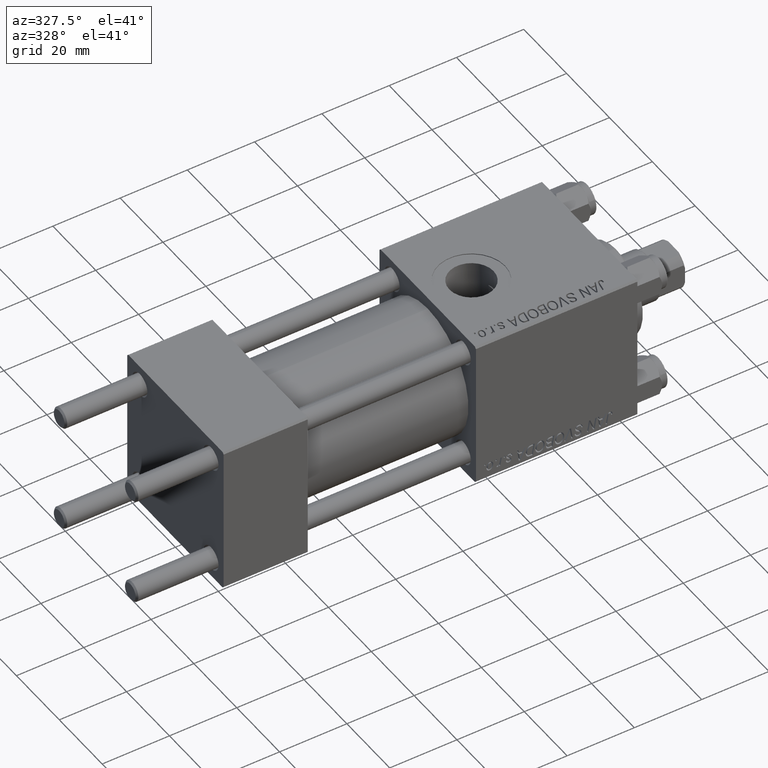
[diagram: clean part render]
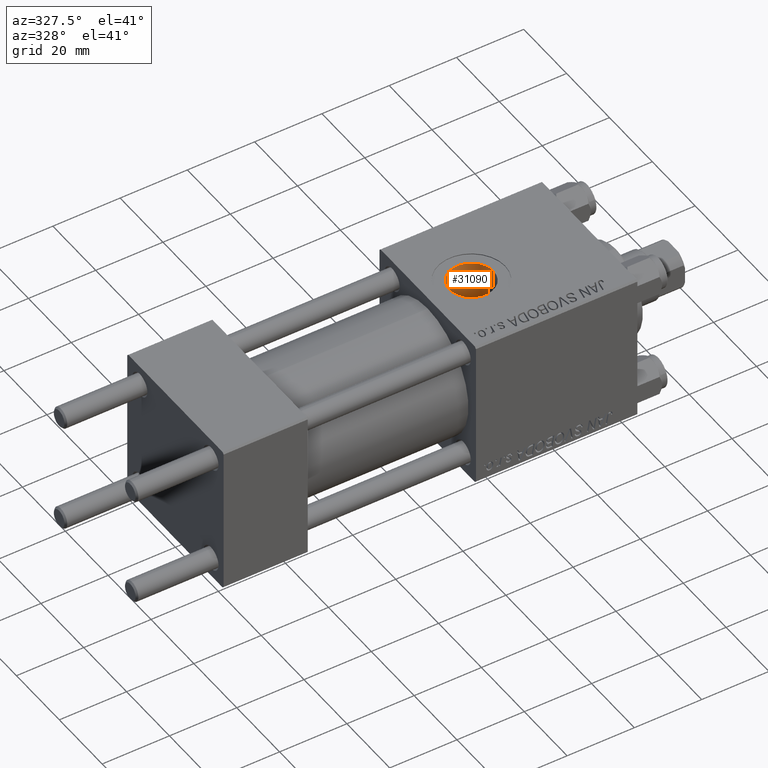
[diagram: same view with one face highlighted and labeled with its STEP entity id]
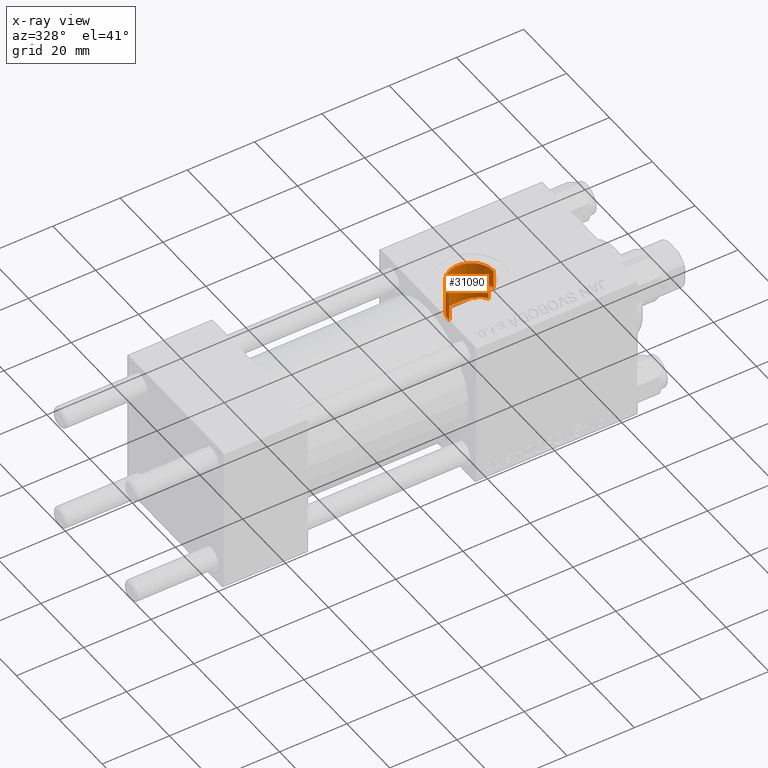
[diagram: x-ray of the same camera — body ghosted, the highlighted face saturated]
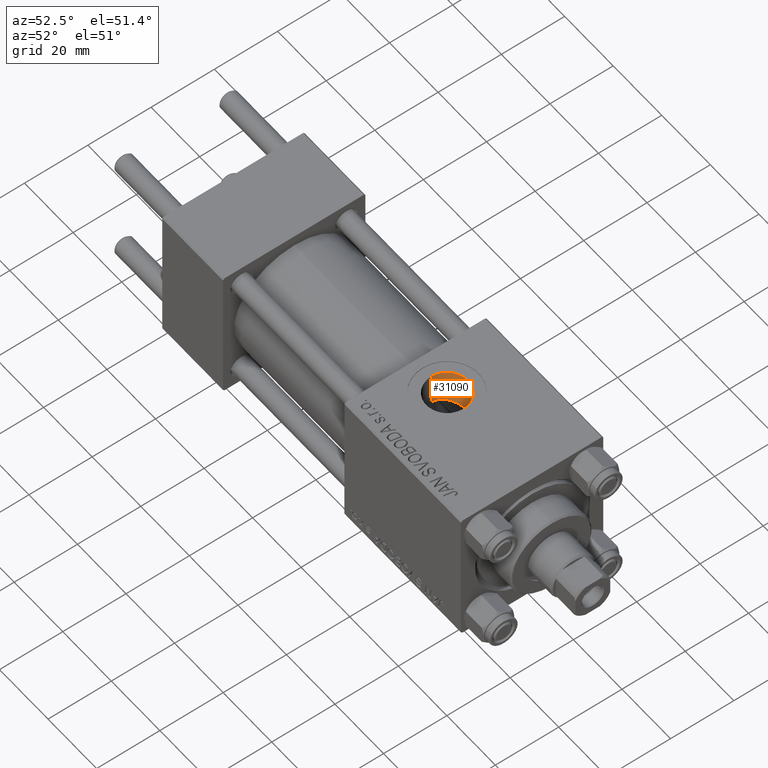
[diagram: same view with one face highlighted and labeled with its STEP entity id]
A machine part, auxiliary view. The second image highlights one B-rep face of the part: STEP entity #31090.
The next image is the same camera in x-ray: the body ghosted, the highlighted face saturated — about 0% of this face is hidden behind the body in this view.
A second angle (auxiliary view) of the same face is appended — the face is thin or edge-on in the first view.
In plain terms, the highlighted cylindrical surface (edge-blend (fillet) strip) has radius 6.58 mm, axis along (0, 0, -1).
Its self-contained STEP definition (entity closure, byte-faithful):
#1182 = CARTESIAN_POINT ( 'NONE',  ( 91.88215370346611621, 5.326621984685210087, 10.75555448901162414 ) ) ;
#1438 = CARTESIAN_POINT ( 'NONE',  ( 92.75223196117465818, 4.567322448867138007, 11.10049212416560493 ) ) ;
#2099 = ORIENTED_EDGE ( 'NONE', *, *, #26678, .F. ) ;
#3147 = DIRECTION ( 'NONE',  ( 0.000000000000000000, 0.000000000000000000, -1.000000000000000000 ) ) ;
#4136 = VECTOR ( 'NONE', #14001, 1000.000000000000000 ) ;
#4463 = CARTESIAN_POINT ( 'NONE',  ( 93.68108973531616357, 3.342884759177825238, 11.53059896909529591 ) ) ;
#4711 = CARTESIAN_POINT ( 'NONE',  ( 90.89150051817900078, 5.923651265023259782, 10.43747821104793339 ) ) ;
#4960 = CARTESIAN_POINT ( 'NONE',  ( 85.15847559875078332, 5.947407073964698476, 10.42466916922575493 ) ) ;
#5199 = CARTESIAN_POINT ( 'NONE',  ( 86.06381098789942996, 6.291694806526731298, 10.21860835373034782 ) ) ;
#6477 = ORIENTED_EDGE ( 'NONE', *, *, #42054, .T. ) ;
#6717 = DIRECTION ( 'NONE',  ( -1.000000000000000000, 0.000000000000000000, 0.000000000000000000 ) ) ;
#7325 = CARTESIAN_POINT ( 'NONE',  ( 90.16689331473169489, 6.225350826966485229, 10.26038999243691663 ) ) ;
#8485 = CARTESIAN_POINT ( 'NONE',  ( 81.45705646777146569, 0.8024769132757282319, 11.97956798721945937 ) ) ;
#8797 = B_SPLINE_CURVE_WITH_KNOTS ( 'NONE', 3,
 ( #47661, #16930, #13134, #25915 ),
 .UNSPECIFIED., .F., .F.,
 ( 4, 4 ),
 ( 0.000000000000000000, 0.001922561461481083313 ),
 .UNSPECIFIED. ) ;
#9156 = LINE ( 'NONE', #35617, #16619 ) ;
#9980 = CARTESIAN_POINT ( 'NONE',  ( 81.42000000000000171, -5.204170427930420494E-15, 45.29999999999999005 ) ) ;
#11257 = DIRECTION ( 'NONE',  ( 0.000000000000000000, 0.000000000000000000, -1.000000000000000000 ) ) ;
#12046 = CARTESIAN_POINT ( 'NONE',  ( 84.01097073899009615, 5.236455063200054383, 10.79801533958693049 ) ) ;
#12296 = CARTESIAN_POINT ( 'NONE',  ( 81.60104442533068436, 1.583491968934688687, 11.90153652017558450 ) ) ;
#12804 = VERTEX_POINT ( 'NONE', #19349 ) ;
#13015 = CARTESIAN_POINT ( 'NONE',  ( 94.18483796286322729, 2.281096005955299155, 11.78754883984398028 ) ) ;
#13134 = CARTESIAN_POINT ( 'NONE',  ( 94.58000000000001251, 0.6476041116638452388, 16.50000000000000000 ) ) ;
#13252 = CARTESIAN_POINT ( 'NONE',  ( 94.30000000000001137, 1.899052395275078853, 11.84878052796995718 ) ) ;
#13269 = CARTESIAN_POINT ( 'NONE',  ( 94.58000000000001251, -4.398352834091461452E-15, 22.29999999999999716 ) ) ;
#14001 = DIRECTION ( 'NONE',  ( 0.000000000000000000, 0.000000000000000000, -1.000000000000000000 ) ) ;
#15481 = EDGE_LOOP ( 'NONE', ( #2099, #21562, #6477, #28302, #24467, #27671 ) ) ;
#16543 = CARTESIAN_POINT ( 'NONE',  ( 86.63652304892134737, 6.440225530122367203, 10.12553965146808110 ) ) ;
#16619 = VECTOR ( 'NONE', #31811, 1000.000000000000000 ) ;
#16802 = CARTESIAN_POINT ( 'NONE',  ( 92.18812012102893050, 5.089576879915268748, 10.87095059937355934 ) ) ;
#16930 = CARTESIAN_POINT ( 'NONE',  ( 94.48644965059656897, 1.280516118087120070, 16.46201693687124745 ) ) ;
#17381 = B_SPLINE_CURVE_WITH_KNOTS ( 'NONE', 3,
 ( #43019, #31413, #8485, #12296, #24122, #35937, #38989, #39491, #23871, #39734, #19845, #43263, #18926, #12046, #39241, #28372, #28120, #4960, #24369, #5199, #20335, #16543, #31654, #30500, #34269, #31892, #35689, #20579, #7325, #4711, #35195, #1182, #16802, #1438, #47536, #47287, #4463, #20094, #13015, #27388 ),
 .UNSPECIFIED., .F., .F.,
 ( 4, 2, 2, 2, 2, 2, 2, 2, 2, 2, 2, 2, 2, 2, 2, 2, 2, 2, 2, 4 ),
 ( 0.01908272948376852837, 0.02027211068882234235, 0.02146149189387615633, 0.02205618249640306158, 0.02265087309892997031, 0.02384025430398376347, 0.02502963550903755663, 0.02562432611156446882, 0.02621901671409138102, 0.02740839791914520540, 0.02800308852167211413, 0.02859777912419902285, 0.02978716032925284724, 0.03097654153430666815, 0.03216592273936048907, 0.03335530394441431346, 0.03454468514946813784, 0.03573406635452195529, 0.03692344755957577968, 0.03811282876462960406 ),
 .UNSPECIFIED. ) ;
#18926 = CARTESIAN_POINT ( 'NONE',  ( 83.56581515316379694, 4.876481215027403060, 10.96769431425572172 ) ) ;
#19349 = CARTESIAN_POINT ( 'NONE',  ( 94.58000000000001251, 2.020172399822898567E-15, 16.50000000000000000 ) ) ;
#19845 = CARTESIAN_POINT ( 'NONE',  ( 82.78475287781570557, 4.030653862891778516, 11.30711776153493808 ) ) ;
#20094 = CARTESIAN_POINT ( 'NONE',  ( 94.03738513764136542, 2.645683237586368364, 11.71024983958922583 ) ) ;
#20158 = DIRECTION ( 'NONE',  ( -0.000000000000000000, -0.000000000000000000, -1.000000000000000000 ) ) ;
#20335 = CARTESIAN_POINT ( 'NONE',  ( 86.25189730832173041, 6.346629913135778622, 10.18446595840853597 ) ) ;
#20579 = CARTESIAN_POINT ( 'NONE',  ( 89.79279569586574894, 6.343435066235461051, 10.18679906040885719 ) ) ;
#21377 = VECTOR ( 'NONE', #3147, 1000.000000000000000 ) ;
#21562 = ORIENTED_EDGE ( 'NONE', *, *, #46423, .F. ) ;
#21816 = LINE ( 'NONE', #26074, #21377 ) ;
#23871 = CARTESIAN_POINT ( 'NONE',  ( 82.25859302551884866, 3.220243119365621798, 11.56113513882421096 ) ) ;
#24122 = CARTESIAN_POINT ( 'NONE',  ( 81.70724907846415874, 1.963001504588604673, 11.84432785252562326 ) ) ;
#24369 = CARTESIAN_POINT ( 'NONE',  ( 85.51128222741164109, 6.103612828859660944, 10.33283268697370794 ) ) ;
#24467 = ORIENTED_EDGE ( 'NONE', *, *, #24561, .F. ) ;
#24561 = EDGE_CURVE ( 'NONE', #31857, #31786, #21816, .T. ) ;
#25915 = CARTESIAN_POINT ( 'NONE',  ( 94.58000000000001251, 2.020172399822898567E-15, 16.50000000000000000 ) ) ;
#26074 = CARTESIAN_POINT ( 'NONE',  ( 94.30000000000001137, 1.899052395275078853, 45.29999999999999005 ) ) ;
#26678 = EDGE_CURVE ( 'NONE', #29328, #12804, #9156, .T. ) ;
#27388 = CARTESIAN_POINT ( 'NONE',  ( 94.30000000000001137, 1.899052395275078853, 11.84878052796995718 ) ) ;
#27671 = ORIENTED_EDGE ( 'NONE', *, *, #49757, .T. ) ;
#28120 = CARTESIAN_POINT ( 'NONE',  ( 84.65070684754140018, 5.667099199368138329, 10.57805895296173126 ) ) ;
#28302 = ORIENTED_EDGE ( 'NONE', *, *, #42028, .T. ) ;
#28372 = CARTESIAN_POINT ( 'NONE',  ( 84.48443970993218954, 5.565459456558937035, 10.63203912863488831 ) ) ;
#29328 = VERTEX_POINT ( 'NONE', #13269 ) ;
#30500 = CARTESIAN_POINT ( 'NONE',  ( 87.42561790000441135, 6.566992248200678617, 10.04387831561290234 ) ) ;
#31090 = ADVANCED_FACE ( 'NONE', ( #41246 ), #47858, .F. ) ;
#31337 = VERTEX_POINT ( 'NONE', #47987 ) ;
#31413 = CARTESIAN_POINT ( 'NONE',  ( 81.42000000000004434, 0.3976591527617308608, 12.00000000000000533 ) ) ;
#31654 = CARTESIAN_POINT ( 'NONE',  ( 86.83419489992905937, 6.478967816313746297, 10.10070273480327430 ) ) ;
#31696 = CARTESIAN_POINT ( 'NONE',  ( 81.42000000000000171, 1.469576107744199801E-15, 12.00000000000000178 ) ) ;
#31786 = VERTEX_POINT ( 'NONE', #13252 ) ;
#31811 = DIRECTION ( 'NONE',  ( 0.000000000000000000, 0.000000000000000000, -1.000000000000000000 ) ) ;
#31857 = VERTEX_POINT ( 'NONE', #45941 ) ;
#31892 = CARTESIAN_POINT ( 'NONE',  ( 88.61588198934801142, 6.563160196869033847, 10.04615237361005953 ) ) ;
#34269 = CARTESIAN_POINT ( 'NONE',  ( 87.82138093783677846, 6.589573402368412047, 10.02884697551796478 ) ) ;
#34954 = AXIS2_PLACEMENT_3D ( 'NONE', #39303, #20158, #35510 ) ;
#35195 = CARTESIAN_POINT ( 'NONE',  ( 91.23583201536588660, 5.742247844999425865, 10.53951819678818680 ) ) ;
#35510 = DIRECTION ( 'NONE',  ( 1.000000000000000000, 0.000000000000000000, 0.000000000000000000 ) ) ;
#35617 = CARTESIAN_POINT ( 'NONE',  ( 94.58000000000001251, -4.398352834091461452E-15, 45.29999999999999005 ) ) ;
#35689 = CARTESIAN_POINT ( 'NONE',  ( 89.01891393464315172, 6.512687558946026911, 10.07943174470872272 ) ) ;
#35937 = CARTESIAN_POINT ( 'NONE',  ( 81.91700611386447406, 2.516447426058158410, 11.73468626117324298 ) ) ;
#36444 = LINE ( 'NONE', #9980, #4136 ) ;
#38989 = CARTESIAN_POINT ( 'NONE',  ( 81.99551268624995259, 2.698274377936877855, 11.69410398929686501 ) ) ;
#39241 = CARTESIAN_POINT ( 'NONE',  ( 84.16489446748850867, 5.350277438619694514, 10.74193308139748204 ) ) ;
#39303 = CARTESIAN_POINT ( 'NONE',  ( 88.00000000000001421, -5.204170427930420494E-15, 22.29999999999999716 ) ) ;
#39491 = CARTESIAN_POINT ( 'NONE',  ( 82.16614062154590670, 3.049694619472453017, 11.60741639897010735 ) ) ;
#39734 = CARTESIAN_POINT ( 'NONE',  ( 82.55681353800792976, 3.717176390455099622, 11.41498337564068599 ) ) ;
#41246 = FACE_OUTER_BOUND ( 'NONE', #15481, .T. ) ;
#41494 = CARTESIAN_POINT ( 'NONE',  ( 88.00000000000001421, -5.204170427930420494E-15, 45.29999999999999005 ) ) ;
#42028 = EDGE_CURVE ( 'NONE', #44107, #31786, #17381, .T. ) ;
#42054 = EDGE_CURVE ( 'NONE', #31337, #44107, #36444, .T. ) ;
#43019 = CARTESIAN_POINT ( 'NONE',  ( 81.42000000000000171, 1.469576107744199801E-15, 12.00000000000000178 ) ) ;
#43263 = CARTESIAN_POINT ( 'NONE',  ( 83.29103396094789957, 4.612007366749330650, 11.08271043945085843 ) ) ;
#44107 = VERTEX_POINT ( 'NONE', #31696 ) ;
#45941 = CARTESIAN_POINT ( 'NONE',  ( 94.30000000000001137, 1.899052395275078853, 16.39035081991841025 ) ) ;
#46254 = CIRCLE ( 'NONE', #34954, 6.580000000000002736 ) ;
#46423 = EDGE_CURVE ( 'NONE', #31337, #29328, #46254, .T. ) ;
#46560 = AXIS2_PLACEMENT_3D ( 'NONE', #41494, #11257, #6717 ) ;
#47287 = CARTESIAN_POINT ( 'NONE',  ( 93.47237423914735643, 3.673760512163765313, 11.42839632120319138 ) ) ;
#47536 = CARTESIAN_POINT ( 'NONE',  ( 93.00866761081064737, 4.284465530078829687, 11.21374664850203651 ) ) ;
#47661 = CARTESIAN_POINT ( 'NONE',  ( 94.30000000000001137, 1.899052395275078853, 16.39035081991841025 ) ) ;
#47858 = CYLINDRICAL_SURFACE ( 'NONE', #46560, 6.580000000000002736 ) ;
#47987 = CARTESIAN_POINT ( 'NONE',  ( 81.42000000000000171, -5.204170427930420494E-15, 22.29999999999999716 ) ) ;
#49757 = EDGE_CURVE ( 'NONE', #31857, #12804, #8797, .T. ) ;